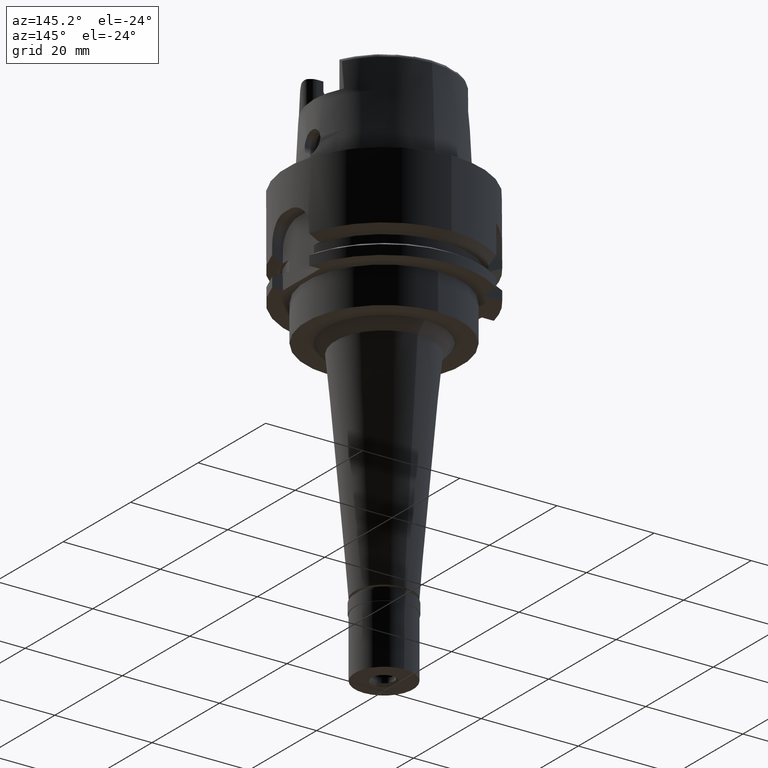
[diagram: clean part render]
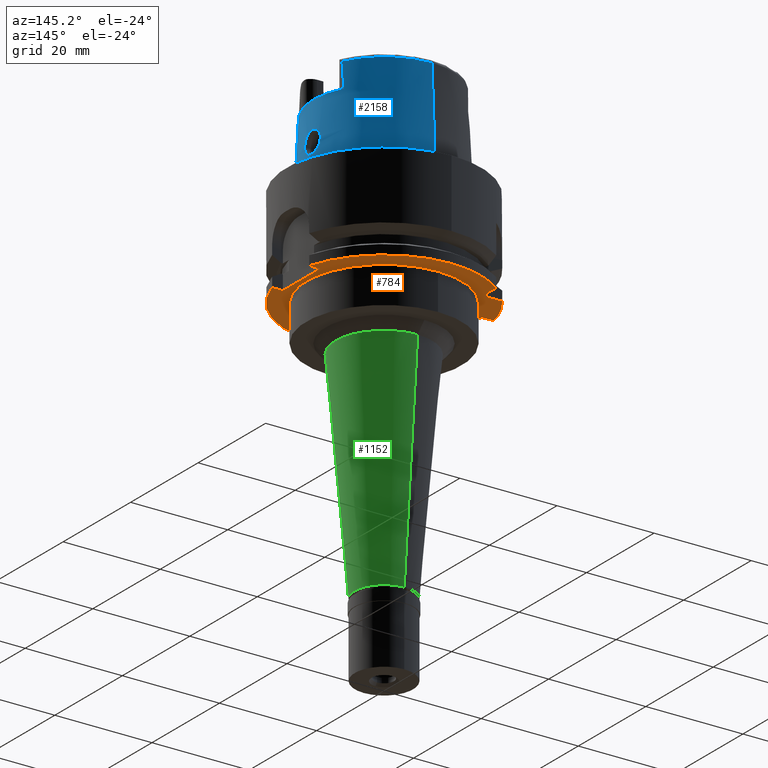
[diagram: same view with three faces highlighted in distinct colors, each labeled with its STEP entity id]
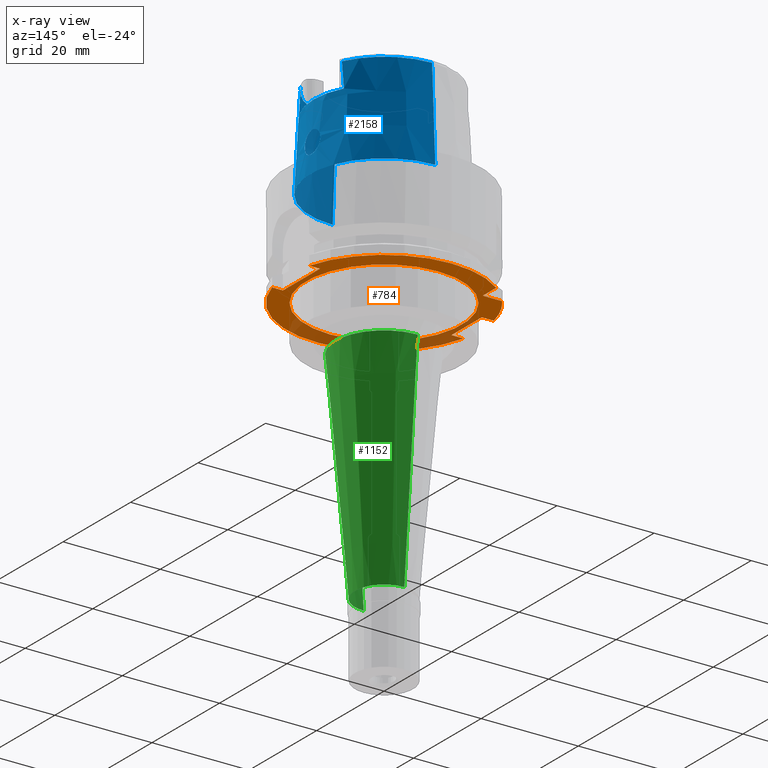
[diagram: x-ray of the same camera — body ghosted, the three highlighted faces saturated]
A machine part, auxiliary view with three faces highlighted in distinct colors.
The next image is the same camera in x-ray (body ghosted, the three faces saturated) — at least one of them is partly hidden behind the body in this view.
Their STEP definitions:

[orange] entity #784 — the highlighted planar face has unit normal (0, 0, -1).
#26 = DIRECTION ( 'NONE',  ( 0.0000000000000000000, 0.0000000000000000000, 1.000000000000000000 ) ) ;
#117 = VERTEX_POINT ( 'NONE', #4235 ) ;
#145 = LINE ( 'NONE', #1831, #1615 ) ;
#150 = AXIS2_PLACEMENT_3D ( 'NONE', #1369, #2990, #2591 ) ;
#161 = LINE ( 'NONE', #1791, #5143 ) ;
#200 = DIRECTION ( 'NONE',  ( 0.0000000000000000000, 0.0000000000000000000, -1.000000000000000000 ) ) ;
#322 = CARTESIAN_POINT ( 'NONE',  ( 0.0000000000000000000, 1.534482439332000152E-14, -20.00000000000000000 ) ) ;
#323 = AXIS2_PLACEMENT_3D ( 'NONE', #1442, #5021, #3387 ) ;
#327 = VECTOR ( 'NONE', #3110, 1000.000000000000000 ) ;
#397 = VERTEX_POINT ( 'NONE', #4771 ) ;
#472 = LINE ( 'NONE', #2434, #5206 ) ;
#557 = CARTESIAN_POINT ( 'NONE',  ( -12.00000000000000000, 12.00000000000000000, -20.00000000000000000 ) ) ;
#560 = EDGE_CURVE ( 'NONE', #1611, #4029, #3924, .T. ) ;
#628 = ORIENTED_EDGE ( 'NONE', *, *, #2355, .F. ) ;
#649 = FACE_BOUND ( 'NONE', #2881, .T. ) ;
#652 = ORIENTED_EDGE ( 'NONE', *, *, #560, .F. ) ;
#671 = VERTEX_POINT ( 'NONE', #3371 ) ;
#723 = VERTEX_POINT ( 'NONE', #2540 ) ;
#784 = ADVANCED_FACE ( 'NONE', ( #4695, #649 ), #3039, .T. ) ;
#877 = VERTEX_POINT ( 'NONE', #4467 ) ;
#900 = DIRECTION ( 'NONE',  ( -1.000000000000000000, -1.449839272533000158E-13, 0.0000000000000000000 ) ) ;
#1040 = AXIS2_PLACEMENT_3D ( 'NONE', #322, #1129, #4846 ) ;
#1047 = DIRECTION ( 'NONE',  ( -1.000000000000000000, 0.0000000000000000000, 0.0000000000000000000 ) ) ;
#1102 = VECTOR ( 'NONE', #1329, 1000.000000000000000 ) ;
#1112 = EDGE_CURVE ( 'NONE', #117, #1611, #1686, .T. ) ;
#1129 = DIRECTION ( 'NONE',  ( 0.0000000000000000000, 0.0000000000000000000, 1.000000000000000000 ) ) ;
#1269 = VERTEX_POINT ( 'NONE', #2162 ) ;
#1280 = DIRECTION ( 'NONE',  ( 0.0000000000000000000, -1.000000000000000000, 0.0000000000000000000 ) ) ;
#1285 = CARTESIAN_POINT ( 'NONE',  ( -17.00000000000000000, -4.500000000000000000, -20.00000000000000000 ) ) ;
#1329 = DIRECTION ( 'NONE',  ( 0.0000000000000000000, 1.000000000000000000, 0.0000000000000000000 ) ) ;
#1369 = CARTESIAN_POINT ( 'NONE',  ( 0.0000000000000000000, 0.0000000000000000000, -20.00000000000000000 ) ) ;
#1373 = ORIENTED_EDGE ( 'NONE', *, *, #2349, .F. ) ;
#1404 = VERTEX_POINT ( 'NONE', #2779 ) ;
#1440 = VERTEX_POINT ( 'NONE', #1593 ) ;
#1442 = CARTESIAN_POINT ( 'NONE',  ( 0.0000000000000000000, 1.534482439332000152E-14, -20.00000000000000000 ) ) ;
#1444 = CARTESIAN_POINT ( 'NONE',  ( -12.00000000000000000, 12.00000000000000000, -20.00000000000000000 ) ) ;
#1593 = CARTESIAN_POINT ( 'NONE',  ( -19.48717526991000071, 4.500000000000000000, -20.00000000000000000 ) ) ;
#1611 = VERTEX_POINT ( 'NONE', #3830 ) ;
#1615 = VECTOR ( 'NONE', #4237, 1000.000000000000000 ) ;
#1669 = DIRECTION ( 'NONE',  ( 0.0000000000000000000, 1.000000000000000000, 0.0000000000000000000 ) ) ;
#1686 = LINE ( 'NONE', #1285, #3733 ) ;
#1703 = AXIS2_PLACEMENT_3D ( 'NONE', #4938, #26, #1669 ) ;
#1766 = EDGE_CURVE ( 'NONE', #877, #1440, #472, .T. ) ;
#1791 = CARTESIAN_POINT ( 'NONE',  ( -17.00000000000000000, 4.500000000000000000, -20.00000000000000000 ) ) ;
#1831 = CARTESIAN_POINT ( 'NONE',  ( 19.22888452303000051, -5.500000000000000000, -20.00000000000000000 ) ) ;
#1873 = VECTOR ( 'NONE', #1047, 1000.000000000000000 ) ;
#1916 = VERTEX_POINT ( 'NONE', #2465 ) ;
#1940 = EDGE_CURVE ( 'NONE', #4352, #1404, #4698, .T. ) ;
#1949 = CIRCLE ( 'NONE', #1703, 20.00000000000000000 ) ;
#2031 = EDGE_CURVE ( 'NONE', #3029, #1916, #3515, .T. ) ;
#2083 = ORIENTED_EDGE ( 'NONE', *, *, #3129, .F. ) ;
#2150 = VECTOR ( 'NONE', #1280, 1000.000000000000000 ) ;
#2162 = CARTESIAN_POINT ( 'NONE',  ( -12.00000000000000000, 16.00000000000000000, -20.00000000000000000 ) ) ;
#2166 = EDGE_LOOP ( 'NONE', ( #4929, #2699, #4434, #1373, #652, #3290, #3007, #4114, #2279, #2083, #5200 ) ) ;
#2279 = ORIENTED_EDGE ( 'NONE', *, *, #2641, .F. ) ;
#2349 = EDGE_CURVE ( 'NONE', #4029, #671, #145, .T. ) ;
#2355 = EDGE_CURVE ( 'NONE', #1404, #4352, #5214, .T. ) ;
#2408 = EDGE_CURVE ( 'NONE', #397, #1269, #3002, .T. ) ;
#2434 = CARTESIAN_POINT ( 'NONE',  ( -17.00000000000000000, 4.500000000000000000, -20.00000000000000000 ) ) ;
#2465 = CARTESIAN_POINT ( 'NONE',  ( 17.00000000000000000, 5.500000000000000000, -20.00000000000000000 ) ) ;
#2466 = CARTESIAN_POINT ( 'NONE',  ( 19.22888452303000051, -5.500000000000000000, -20.00000000000000000 ) ) ;
#2483 = EDGE_CURVE ( 'NONE', #3029, #1269, #1949, .T. ) ;
#2485 = DIRECTION ( 'NONE',  ( -1.000000000000000000, 1.449839272533000158E-13, 0.0000000000000000000 ) ) ;
#2540 = CARTESIAN_POINT ( 'NONE',  ( -16.00000000000000000, 12.00000000000000000, -20.00000000000000000 ) ) ;
#2591 = DIRECTION ( 'NONE',  ( 0.0000000000000000000, -1.000000000000000000, 0.0000000000000000000 ) ) ;
#2627 = CARTESIAN_POINT ( 'NONE',  ( 0.0000000000000000000, 1.534482439332000152E-14, -20.00000000000000000 ) ) ;
#2641 = EDGE_CURVE ( 'NONE', #723, #1440, #5053, .T. ) ;
#2699 = ORIENTED_EDGE ( 'NONE', *, *, #2031, .T. ) ;
#2710 = AXIS2_PLACEMENT_3D ( 'NONE', #2627, #200, #4213 ) ;
#2779 = CARTESIAN_POINT ( 'NONE',  ( 0.0000000000000000000, 16.00000000000000000, -20.00000000000000000 ) ) ;
#2814 = EDGE_CURVE ( 'NONE', #877, #117, #161, .T. ) ;
#2881 = EDGE_LOOP ( 'NONE', ( #628, #4332 ) ) ;
#2952 = CARTESIAN_POINT ( 'NONE',  ( 17.00000000000000000, 5.500000000000000000, -20.00000000000000000 ) ) ;
#2990 = DIRECTION ( 'NONE',  ( 0.0000000000000000000, 0.0000000000000000000, -1.000000000000000000 ) ) ;
#3002 = LINE ( 'NONE', #557, #1102 ) ;
#3007 = ORIENTED_EDGE ( 'NONE', *, *, #2814, .F. ) ;
#3029 = VERTEX_POINT ( 'NONE', #3416 ) ;
#3039 = PLANE ( 'NONE',  #150 ) ;
#3040 = DIRECTION ( 'NONE',  ( 0.0000000000000000000, 0.0000000000000000000, 1.000000000000000000 ) ) ;
#3110 = DIRECTION ( 'NONE',  ( -1.000000000000000000, 2.231519443439000031E-14, 0.0000000000000000000 ) ) ;
#3129 = EDGE_CURVE ( 'NONE', #397, #723, #3468, .T. ) ;
#3290 = ORIENTED_EDGE ( 'NONE', *, *, #1112, .F. ) ;
#3371 = CARTESIAN_POINT ( 'NONE',  ( 17.00000000000000000, -5.500000000000000000, -20.00000000000000000 ) ) ;
#3387 = DIRECTION ( 'NONE',  ( 0.0000000000000000000, -1.000000000000000000, 0.0000000000000000000 ) ) ;
#3416 = CARTESIAN_POINT ( 'NONE',  ( 19.22888452303000051, 5.500000000000000000, -20.00000000000000000 ) ) ;
#3451 = CARTESIAN_POINT ( 'NONE',  ( 0.0000000000000000000, 1.534482439332000152E-14, -20.00000000000000000 ) ) ;
#3468 = LINE ( 'NONE', #1444, #1873 ) ;
#3515 = LINE ( 'NONE', #4835, #327 ) ;
#3733 = VECTOR ( 'NONE', #2485, 1000.000000000000000 ) ;
#3830 = CARTESIAN_POINT ( 'NONE',  ( -19.48717526991000071, -4.500000000000000000, -20.00000000000000000 ) ) ;
#3924 = CIRCLE ( 'NONE', #1040, 20.00000000000000000 ) ;
#4007 = CARTESIAN_POINT ( 'NONE',  ( 0.0000000000000000000, -16.00000000000000000, -20.00000000000000000 ) ) ;
#4029 = VERTEX_POINT ( 'NONE', #2466 ) ;
#4114 = ORIENTED_EDGE ( 'NONE', *, *, #1766, .T. ) ;
#4161 = LINE ( 'NONE', #2952, #2150 ) ;
#4213 = DIRECTION ( 'NONE',  ( 0.0000000000000000000, 1.000000000000000000, 0.0000000000000000000 ) ) ;
#4235 = CARTESIAN_POINT ( 'NONE',  ( -17.00000000000000000, -4.500000000000000000, -20.00000000000000000 ) ) ;
#4237 = DIRECTION ( 'NONE',  ( -1.000000000000000000, -2.470610812378999996E-14, 0.0000000000000000000 ) ) ;
#4310 = DIRECTION ( 'NONE',  ( 0.0000000000000000000, -1.000000000000000000, 0.0000000000000000000 ) ) ;
#4332 = ORIENTED_EDGE ( 'NONE', *, *, #1940, .F. ) ;
#4352 = VERTEX_POINT ( 'NONE', #4007 ) ;
#4434 = ORIENTED_EDGE ( 'NONE', *, *, #4683, .T. ) ;
#4467 = CARTESIAN_POINT ( 'NONE',  ( -17.00000000000000000, 4.500000000000000000, -20.00000000000000000 ) ) ;
#4683 = EDGE_CURVE ( 'NONE', #1916, #671, #4161, .T. ) ;
#4695 = FACE_OUTER_BOUND ( 'NONE', #2166, .T. ) ;
#4698 = CIRCLE ( 'NONE', #323, 16.00000000000000000 ) ;
#4771 = CARTESIAN_POINT ( 'NONE',  ( -12.00000000000000000, 12.00000000000000000, -20.00000000000000000 ) ) ;
#4782 = AXIS2_PLACEMENT_3D ( 'NONE', #3451, #3040, #5050 ) ;
#4835 = CARTESIAN_POINT ( 'NONE',  ( 19.22888452303000051, 5.500000000000000000, -20.00000000000000000 ) ) ;
#4846 = DIRECTION ( 'NONE',  ( 0.0000000000000000000, -1.000000000000000000, 0.0000000000000000000 ) ) ;
#4929 = ORIENTED_EDGE ( 'NONE', *, *, #2483, .F. ) ;
#4938 = CARTESIAN_POINT ( 'NONE',  ( 0.0000000000000000000, 1.534482439332000152E-14, -20.00000000000000000 ) ) ;
#5021 = DIRECTION ( 'NONE',  ( 0.0000000000000000000, 0.0000000000000000000, -1.000000000000000000 ) ) ;
#5050 = DIRECTION ( 'NONE',  ( -0.8000000000000000444, 0.5999999999999999778, 0.0000000000000000000 ) ) ;
#5053 = CIRCLE ( 'NONE', #4782, 20.00000000000000000 ) ;
#5143 = VECTOR ( 'NONE', #4310, 1000.000000000000000 ) ;
#5200 = ORIENTED_EDGE ( 'NONE', *, *, #2408, .T. ) ;
#5206 = VECTOR ( 'NONE', #900, 1000.000000000000000 ) ;
#5214 = CIRCLE ( 'NONE', #2710, 16.00000000000000000 ) ;

[blue] entity #2158 — the highlighted conical surface has half-angle 2.862 deg.
#11 = DIRECTION ( 'NONE',  ( 0.0000000000000000000, -1.000000000000000000, 0.0000000000000000000 ) ) ;
#23 = CARTESIAN_POINT ( 'NONE',  ( 14.88821001435302804, -1.654245681067648022, 4.402013557400260346 ) ) ;
#50 = CARTESIAN_POINT ( 'NONE',  ( 14.79810665353090293, -2.102674614818958343, 5.065755760936393237 ) ) ;
#77 = CARTESIAN_POINT ( 'NONE',  ( 14.97631679569881769, -0.9302403002532146914, 3.896398779043610983 ) ) ;
#81 = VECTOR ( 'NONE', #2991, 1000.000000000000227 ) ;
#107 = CARTESIAN_POINT ( 'NONE',  ( 14.83223049921039305, -1.955432229122414656, 4.788775612871565279 ) ) ;
#124 = CARTESIAN_POINT ( 'NONE',  ( 14.90627237532232030, 1.538492220976826141, 4.290173904353743239 ) ) ;
#173 = CARTESIAN_POINT ( 'NONE',  ( 14.77588826478016237, 2.186440970395673755, 5.267478523036968063 ) ) ;
#196 = CARTESIAN_POINT ( 'NONE',  ( 0.0000000000000000000, 1.459778984583999657E-14, 19.23995141520000018 ) ) ;
#202 = DIRECTION ( 'NONE',  ( 0.0000000000000000000, 0.0000000000000000000, 1.000000000000000000 ) ) ;
#252 = CARTESIAN_POINT ( 'NONE',  ( 14.72899035727410855, 1.629186609744705194, 7.623499612144176929 ) ) ;
#294 = CARTESIAN_POINT ( 'NONE',  ( 12.88000426023315015, 6.264427326735636292, 17.56902551621967845 ) ) ;
#304 = CARTESIAN_POINT ( 'NONE',  ( 14.74500096446484676, 1.354382634990033862, 7.859010050406248560 ) ) ;
#319 = CARTESIAN_POINT ( 'NONE',  ( 14.76821936306314242, -0.8622089887107629025, 8.132280768175327523 ) ) ;
#320 = VERTEX_POINT ( 'NONE', #951 ) ;
#329 = CARTESIAN_POINT ( 'NONE',  ( 14.70317989464932573, 2.128146396118670403, 6.872382697154782782 ) ) ;
#330 = AXIS2_PLACEMENT_3D ( 'NONE', #2924, #2442, #11 ) ;
#349 = CARTESIAN_POINT ( 'NONE',  ( 14.75798546585661875, -1.101467049407270915, 8.019453734374145881 ) ) ;
#401 = CARTESIAN_POINT ( 'NONE',  ( 14.70935466475967246, -2.282300107805147693, 6.294179699217094637 ) ) ;
#431 = CARTESIAN_POINT ( 'NONE',  ( 14.74236896269456132, -1.402790321579171051, 7.824246805973827712 ) ) ;
#462 = CARTESIAN_POINT ( 'NONE',  ( 14.72949340258022488, -1.621127396483668770, 7.631581464317473973 ) ) ;
#479 = DIRECTION ( 'NONE',  ( 0.0000000000000000000, 0.04993926899656212642, -0.9987522562738413434 ) ) ;
#487 = CARTESIAN_POINT ( 'NONE',  ( 14.96739810545463101, -1.030599217013784319, 3.943520043467635627 ) ) ;
#492 = CARTESIAN_POINT ( 'NONE',  ( 12.87999235482999794, -6.068467380775000031, 19.23976291071000233 ) ) ;
#514 = CARTESIAN_POINT ( 'NONE',  ( 14.73069348759462116, -1.601750673167721795, 7.650601041476320141 ) ) ;
#558 = CARTESIAN_POINT ( 'NONE',  ( 14.98380693823876797, 0.8363119203051441186, 3.857413666469737379 ) ) ;
#559 = CARTESIAN_POINT ( 'NONE',  ( 0.0000000000000000000, 1.342457523729000028E-14, 0.0000000000000000000 ) ) ;
#583 = CARTESIAN_POINT ( 'NONE',  ( 14.89505823822352504, 1.611984248808573605, 4.359391511570482436 ) ) ;
#636 = CARTESIAN_POINT ( 'NONE',  ( 14.82516172525692788, 1.987895855573762471, 4.840676947957295084 ) ) ;
#659 = CARTESIAN_POINT ( 'NONE',  ( 14.76241512542379120, 1.004072161043771505, 8.069547163873370010 ) ) ;
#681 = CARTESIAN_POINT ( 'NONE',  ( 14.78499286951999991, -6.884507511411997731E-14, 8.300000000000000711 ) ) ;
#693 = CIRCLE ( 'NONE', #1043, 15.20000663301000010 ) ;
#694 = CARTESIAN_POINT ( 'NONE',  ( 15.01500049747999910, 0.0000000000000000000, 3.700000000000000178 ) ) ;
#713 = CARTESIAN_POINT ( 'NONE',  ( 14.71340608062630118, 1.895770020524908395, 7.304484774409699455 ) ) ;
#720 = CARTESIAN_POINT ( 'NONE',  ( 0.0000000000000000000, 14.23797715755999782, 19.23995141520000018 ) ) ;
#725 = CARTESIAN_POINT ( 'NONE',  ( 14.76763748318565206, -0.8773581868683637541, 8.126089788909482081 ) ) ;
#733 = CARTESIAN_POINT ( 'NONE',  ( 14.76714121855280126, 0.8900451976600106674, 8.120810014476887773 ) ) ;
#757 = CARTESIAN_POINT ( 'NONE',  ( 14.73066144003646727, 1.603109887202407213, 7.650970480744678781 ) ) ;
#775 = CARTESIAN_POINT ( 'NONE',  ( 14.75237196097236314, -1.215615432300217735, 7.952710625383312859 ) ) ;
#804 = VERTEX_POINT ( 'NONE', #3895 ) ;
#837 = CARTESIAN_POINT ( 'NONE',  ( 14.78455351529502515, -2.153011937056454883, 5.190524067497192640 ) ) ;
#862 = CARTESIAN_POINT ( 'NONE',  ( 14.72153730601653265, -1.748229405450754115, 7.504125723298665562 ) ) ;
#869 = EDGE_CURVE ( 'NONE', #804, #2797, #1433, .T. ) ;
#891 = CARTESIAN_POINT ( 'NONE',  ( 14.87086354996809767, -1.755949291187812511, 4.514041322312498217 ) ) ;
#915 = CARTESIAN_POINT ( 'NONE',  ( 14.70379873878731480, -2.103473923934370049, 6.930530933651575687 ) ) ;
#916 = VERTEX_POINT ( 'NONE', #4387 ) ;
#919 = EDGE_CURVE ( 'NONE', #916, #2084, #3427, .T. ) ;
#939 = CARTESIAN_POINT ( 'NONE',  ( 14.70730645150911720, -2.271637389257438855, 6.367784693223106807 ) ) ;
#951 = CARTESIAN_POINT ( 'NONE',  ( 0.0000000000000000000, -15.20000663301000010, 1.136868377215999875E-13 ) ) ;
#960 = CARTESIAN_POINT ( 'NONE',  ( 14.89650975658425480, 1.602735441835961394, 4.350344716668702816 ) ) ;
#984 = CARTESIAN_POINT ( 'NONE',  ( 14.93882520185985285, 1.296088672663428421, 4.098476733282550022 ) ) ;
#1005 = DIRECTION ( 'NONE',  ( 0.0000000000000000000, 1.000000000000000000, 0.0000000000000000000 ) ) ;
#1043 = AXIS2_PLACEMENT_3D ( 'NONE', #559, #202, #2254 ) ;
#1074 = ORIENTED_EDGE ( 'NONE', *, *, #3708, .T. ) ;
#1082 = CARTESIAN_POINT ( 'NONE',  ( 14.72875565082853200, 1.633092111730418239, 7.619571570464419352 ) ) ;
#1124 = CARTESIAN_POINT ( 'NONE',  ( 14.76875327910774516, -0.8481424277522214838, 8.137950662867330820 ) ) ;
#1133 = CARTESIAN_POINT ( 'NONE',  ( 14.70255776435525519, 2.173680557046427264, 6.753459211667974138 ) ) ;
#1149 = CARTESIAN_POINT ( 'NONE',  ( 14.77405826892677965, -0.6932222171458561899, 8.193393186731615430 ) ) ;
#1159 = CARTESIAN_POINT ( 'NONE',  ( 14.72899569025701716, 1.629097888004926498, 7.623588644519861290 ) ) ;
#1175 = CARTESIAN_POINT ( 'NONE',  ( 14.75372169231070529, -1.188830184850906635, 7.969036074626233201 ) ) ;
#1238 = CARTESIAN_POINT ( 'NONE',  ( 14.71466562909624898, -2.295559344048790695, 6.147463848055757296 ) ) ;
#1261 = CARTESIAN_POINT ( 'NONE',  ( 14.79084131354513687, -2.129932834720285495, 5.131985342801120176 ) ) ;
#1286 = CARTESIAN_POINT ( 'NONE',  ( 14.95159780602250166, -1.187863542090068725, 4.029032633278230691 ) ) ;
#1315 = CARTESIAN_POINT ( 'NONE',  ( 15.00354929571343199, -0.5879302391956210405, 3.754525463234213323 ) ) ;
#1339 = CARTESIAN_POINT ( 'NONE',  ( 14.73757193449818459, -2.287928162841956770, 5.720952481566817127 ) ) ;
#1385 = CARTESIAN_POINT ( 'NONE',  ( 14.79662771912058084, 2.107952846540393832, 5.079723670822791526 ) ) ;
#1411 = CARTESIAN_POINT ( 'NONE',  ( 14.73841581497288900, 2.283619560550004923, 5.716585043810534117 ) ) ;
#1425 = LINE ( 'NONE', #2592, #81 ) ;
#1433 = CIRCLE ( 'NONE', #2023, 14.23797715756000315 ) ;
#1461 = CARTESIAN_POINT ( 'NONE',  ( 14.72578502869058070, 1.682666218039841732, 7.568268079441345719 ) ) ;
#1486 = CARTESIAN_POINT ( 'NONE',  ( 14.70278271980190077, 2.150286612138490039, 6.816650972097614947 ) ) ;
#1505 = CARTESIAN_POINT ( 'NONE',  ( 14.70295563036023445, 2.139722423472351309, 6.843612046889754552 ) ) ;
#1521 = CARTESIAN_POINT ( 'NONE',  ( 14.77916108253695171, -0.5059821365874942467, 8.244918242201794811 ) ) ;
#1558 = CARTESIAN_POINT ( 'NONE',  ( 14.76724015720223981, 0.8875285611425589583, 8.121866846991641964 ) ) ;
#1565 = CARTESIAN_POINT ( 'NONE',  ( 12.88000000001000167, 6.659963896840999986, 14.00000000000000000 ) ) ;
#1575 = CARTESIAN_POINT ( 'NONE',  ( 14.77733864910474360, -0.5807203118208587034, 8.226855804765943248 ) ) ;
#1603 = CARTESIAN_POINT ( 'NONE',  ( 14.74945644800024169, -1.271571545930739511, 7.916558066090167323 ) ) ;
#1628 = ORIENTED_EDGE ( 'NONE', *, *, #2693, .T. ) ;
#1633 = CARTESIAN_POINT ( 'NONE',  ( 14.70919314695223434, -1.970699085230362524, 7.188281518316790297 ) ) ;
#1659 = EDGE_CURVE ( 'NONE', #3195, #1765, #1941, .T. ) ;
#1665 = CARTESIAN_POINT ( 'NONE',  ( 14.70278119553802654, -2.228560811431969935, 6.588153674744921418 ) ) ;
#1687 = CARTESIAN_POINT ( 'NONE',  ( 14.91234266903881789, -1.506178942139080323, 4.253282322896730250 ) ) ;
#1695 = EDGE_LOOP ( 'NONE', ( #4957, #4119, #1628, #1074, #3663, #3178, #2424, #1980 ) ) ;
#1704 = FACE_BOUND ( 'NONE', #4610, .T. ) ;
#1713 = CARTESIAN_POINT ( 'NONE',  ( 14.97820245187326726, -0.9073878355412454688, 3.886539455235769047 ) ) ;
#1722 = CARTESIAN_POINT ( 'NONE',  ( 12.87998480911229038, -6.264498786763086358, 17.56875193849298000 ) ) ;
#1741 = CARTESIAN_POINT ( 'NONE',  ( 14.74570439023823631, -1.342135435275005673, 7.869323291675653032 ) ) ;
#1765 = VERTEX_POINT ( 'NONE', #2121 ) ;
#1777 = CARTESIAN_POINT ( 'NONE',  ( 14.90268249524751099, 1.562660561802649450, 4.312119420941602499 ) ) ;
#1806 = CARTESIAN_POINT ( 'NONE',  ( 14.76156451892420129, 2.230823590980275384, 5.420038455968615665 ) ) ;
#1832 = CARTESIAN_POINT ( 'NONE',  ( 14.98158121278664012, 0.8653313639738411389, 3.868977115725503957 ) ) ;
#1879 = CARTESIAN_POINT ( 'NONE',  ( 14.72887289683894174, 1.631140895574249683, 7.621536708199338150 ) ) ;
#1902 = CARTESIAN_POINT ( 'NONE',  ( 14.71595625860738643, 1.850346110335548522, 7.368546838383246644 ) ) ;
#1913 = CARTESIAN_POINT ( 'NONE',  ( 0.0000000000000000000, 1.459778984583999657E-14, 19.23995141520000018 ) ) ;
#1925 = CARTESIAN_POINT ( 'NONE',  ( 14.72322035710171306, 2.300009956714447412, 5.964199149878180783 ) ) ;
#1933 = CARTESIAN_POINT ( 'NONE',  ( 0.0000000000000000000, 1.342457523729000028E-14, 14.00000000000000000 ) ) ;
#1941 = B_SPLINE_CURVE_WITH_KNOTS ( 'NONE', 3,
 ( #3484, #4186, #3459, #3405, #5112, #5138, #2949, #2228, #558, #4594, #1832, #3051, #2153, #984, #4238, #3780, #4708, #124, #1777, #2972, #960, #583, #4681, #2655, #2580, #3003, #4296, #636, #4214, #2177, #5063, #1385, #2602, #173, #1806, #5090, #1411, #3025, #4829, #4804, #1925, #3508, #5166, #2746, #4372, #3155, #1133, #1486, #1505, #3180, #329, #3613, #3103, #713, #1902, #2721, #4399, #1461, #3531, #2302, #4757, #1082, #1879, #252, #5236, #1159, #757, #3124, #5187, #2694, #4318, #304, #4735, #2771, #3585, #1953, #4778, #4421, #3555, #4340, #659, #3080, #2274, #3904, #2330, #733, #1558, #4011, #2376, #681 ),
 .UNSPECIFIED., .F., .F.,
 ( 4, 2, 2, 1, 1, 2, 2, 2, 2, 2, 1, 2, 2, 2, 2, 2, 1, 2, 2, 2, 2, 2, 2, 2, 2, 1, 1, 2, 2, 2, 2, 1, 1, 1, 1, 1, 2, 3, 2, 2, 2, 1, 1, 2, 2, 2, 2, 1, 1, 2, 2, 4 ),
 ( 0.0000000000000000000, 0.05000000000000005135, 0.07500000000000005274, 0.08750000000000004996, 0.09375000000000006939, 0.09687500000000007216, 0.1000000000000000888, 0.1500000000000005496, 0.1750000000000007938, 0.1875000000000010270, 0.1937500000000011435, 0.1968750000000011324, 0.2000000000000011491, 0.2250000000000017542, 0.2500000000000023315, 0.2750000000000029643, 0.2875000000000031419, 0.2937500000000033973, 0.3000000000000037081, 0.3500000000000059730, 0.3750000000000071054, 0.3875000000000075051, 0.4000000000000079603, 0.4500000000000102252, 0.4750000000000115241, 0.4875000000000121458, 0.4937500000000124012, 0.4968750000000126121, 0.5000000000000127676, 0.5500000000000165867, 0.5750000000000184963, 0.5875000000000194511, 0.5937500000000197620, 0.5968750000000200284, 0.5984375000000202727, 0.5992187500000203393, 0.5996093750000203171, 0.6000000000000202949, 0.6500000000000203393, 0.6750000000000203615, 0.6875000000000202061, 0.6937500000000198508, 0.6968750000000194511, 0.6984375000000193623, 0.7000000000000192735, 0.7500000000000112133, 0.7750000000000069056, 0.7875000000000045297, 0.7937500000000036193, 0.7968750000000034417, 0.8000000000000032641, 1.000000000000000000 ),
 .UNSPECIFIED. ) ;
#1953 = CARTESIAN_POINT ( 'NONE',  ( 14.74853409973798612, 1.288931031631716628, 7.904908975038819285 ) ) ;
#1974 = CARTESIAN_POINT ( 'NONE',  ( 14.77228139633039028, -0.7495699563065219007, 8.175070586197815459 ) ) ;
#1980 = ORIENTED_EDGE ( 'NONE', *, *, #3219, .T. ) ;
#2008 = ORIENTED_EDGE ( 'NONE', *, *, #2945, .F. ) ;
#2023 = AXIS2_PLACEMENT_3D ( 'NONE', #1913, #3628, #3546 ) ;
#2026 = CARTESIAN_POINT ( 'NONE',  ( 14.70541209297422114, -2.056178390762702701, 7.031201060473480702 ) ) ;
#2058 = CARTESIAN_POINT ( 'NONE',  ( 14.87735685451338696, -1.718926800521272558, 4.471014800068244810 ) ) ;
#2084 = VERTEX_POINT ( 'NONE', #1565 ) ;
#2088 = CARTESIAN_POINT ( 'NONE',  ( 14.77220140295300510, -2.195301184873002853, 5.312845609198205032 ) ) ;
#2111 = CARTESIAN_POINT ( 'NONE',  ( 14.85789849607575697, -1.827827004151400869, 4.601868080985916265 ) ) ;
#2121 = CARTESIAN_POINT ( 'NONE',  ( 14.78499286951999991, -6.884507511411997731E-14, 8.300000000000000711 ) ) ;
#2137 = CARTESIAN_POINT ( 'NONE',  ( 14.70454676715564446, -2.079141572814545924, 6.984477729739428042 ) ) ;
#2153 = CARTESIAN_POINT ( 'NONE',  ( 14.96058461610044787, 1.105938291970874232, 3.977761928098093147 ) ) ;
#2158 = ADVANCED_FACE ( 'NONE', ( #3702, #1704 ), #4262, .T. ) ;
#2177 = CARTESIAN_POINT ( 'NONE',  ( 14.80666388667648548, 2.067940916741775936, 4.991927881260773248 ) ) ;
#2228 = CARTESIAN_POINT ( 'NONE',  ( 14.98583048355642333, 0.8092533838074086328, 3.846917805136049751 ) ) ;
#2254 = DIRECTION ( 'NONE',  ( 0.0000000000000000000, -1.000000000000000000, 0.0000000000000000000 ) ) ;
#2265 = CARTESIAN_POINT ( 'NONE',  ( 0.0000000000000000000, -14.23797715755999782, 19.23995141520000018 ) ) ;
#2274 = CARTESIAN_POINT ( 'NONE',  ( 14.76536941270936332, 0.9342837954729805716, 8.101804209811906077 ) ) ;
#2302 = CARTESIAN_POINT ( 'NONE',  ( 14.72817248430645698, 1.642802419264636882, 7.609737103466158281 ) ) ;
#2330 = CARTESIAN_POINT ( 'NONE',  ( 14.76685436012630959, 0.8973171902422801827, 8.117743476315959938 ) ) ;
#2376 = CARTESIAN_POINT ( 'NONE',  ( 14.78499286951999814, 0.2785813559510961213, 8.300000000000004263 ) ) ;
#2400 = CARTESIAN_POINT ( 'NONE',  ( 14.75096339690525227, -1.242826186511074127, 7.935329717380876779 ) ) ;
#2424 = ORIENTED_EDGE ( 'NONE', *, *, #919, .T. ) ;
#2442 = DIRECTION ( 'NONE',  ( 0.0000000000000000000, 0.0000000000000000000, -1.000000000000000000 ) ) ;
#2452 = CARTESIAN_POINT ( 'NONE',  ( 14.83823846060491114, -1.926727980592615852, 4.743881358687393579 ) ) ;
#2486 = CARTESIAN_POINT ( 'NONE',  ( 14.70337028550372338, -2.119891799105110497, 6.892259917720456208 ) ) ;
#2511 = CARTESIAN_POINT ( 'NONE',  ( 14.77772077390270944, -2.177131790705428838, 5.256433042184986526 ) ) ;
#2513 = B_SPLINE_CURVE_WITH_KNOTS ( 'NONE', 3,
 ( #3063, #5101, #1722, #492 ),
 .UNSPECIFIED., .F., .F.,
 ( 4, 4 ),
 ( 0.0000000000000000000, 1.000000000000000000 ),
 .UNSPECIFIED. ) ;
#2538 = CARTESIAN_POINT ( 'NONE',  ( 14.73194453387004543, -1.581397157406860154, 7.670271292575605138 ) ) ;
#2564 = VECTOR ( 'NONE', #479, 1000.000000000000227 ) ;
#2580 = CARTESIAN_POINT ( 'NONE',  ( 14.85961751801453268, 1.820042557327718802, 4.591749789562994621 ) ) ;
#2592 = CARTESIAN_POINT ( 'NONE',  ( 0.0000000000000000000, -14.23797715755999782, 19.23995141520000018 ) ) ;
#2602 = CARTESIAN_POINT ( 'NONE',  ( 14.79475187274841197, 2.115203342875419779, 5.096485506119727837 ) ) ;
#2655 = CARTESIAN_POINT ( 'NONE',  ( 14.87690011844906124, 1.723564939533433149, 4.475189367530838069 ) ) ;
#2693 = EDGE_CURVE ( 'NONE', #2797, #320, #1425, .T. ) ;
#2694 = CARTESIAN_POINT ( 'NONE',  ( 14.74146912258905040, 1.418215996256903200, 7.810927699523335654 ) ) ;
#2721 = CARTESIAN_POINT ( 'NONE',  ( 14.72038869746222289, 1.773863879967596535, 7.464609924029935506 ) ) ;
#2738 = CARTESIAN_POINT ( 'NONE',  ( 14.78499286951999636, -0.1390341784427496230, 8.300000000000000711 ) ) ;
#2746 = CARTESIAN_POINT ( 'NONE',  ( 14.70427225159382445, 2.242704431812615695, 6.515678568523863845 ) ) ;
#2760 = CARTESIAN_POINT ( 'NONE',  ( 14.76259995482598697, -1.001239328995031874, 8.072006754550796970 ) ) ;
#2771 = CARTESIAN_POINT ( 'NONE',  ( 14.74751654805426604, 1.307950458727201726, 7.891933238191012556 ) ) ;
#2787 = CARTESIAN_POINT ( 'NONE',  ( 14.76525791473413562, -0.9385387104503964961, 8.100721495804101835 ) ) ;
#2797 = VERTEX_POINT ( 'NONE', #2265 ) ;
#2849 = CARTESIAN_POINT ( 'NONE',  ( 14.73486355486385513, -1.533063810958050555, 7.715286704296295817 ) ) ;
#2873 = CARTESIAN_POINT ( 'NONE',  ( 14.88495123728134928, -1.673916420340660016, 4.422460787494471468 ) ) ;
#2903 = CIRCLE ( 'NONE', #4539, 14.49998341749000730 ) ;
#2906 = CARTESIAN_POINT ( 'NONE',  ( 14.70744162280561085, -2.007274745616504319, 7.125090619752345589 ) ) ;
#2924 = CARTESIAN_POINT ( 'NONE',  ( 0.0000000000000000000, 1.342457523729000028E-14, 9.619975707600000092 ) ) ;
#2934 = CARTESIAN_POINT ( 'NONE',  ( 14.97170762751505002, -0.9839554819478038006, 3.920614905032627995 ) ) ;
#2945 = EDGE_CURVE ( 'NONE', #1765, #3195, #5055, .T. ) ;
#2949 = CARTESIAN_POINT ( 'NONE',  ( 14.99031987917924447, 0.7459016682297799905, 3.823713580440719628 ) ) ;
#2957 = CARTESIAN_POINT ( 'NONE',  ( 14.75515255790491054, -2.246231951736888721, 5.499937285969486389 ) ) ;
#2972 = CARTESIAN_POINT ( 'NONE',  ( 14.89899223594640176, 1.586722728875298971, 4.334937108692136221 ) ) ;
#2976 = CARTESIAN_POINT ( 'NONE',  ( 0.0000000000000000000, 15.20000663301000010, 0.0000000000000000000 ) ) ;
#2991 = DIRECTION ( 'NONE',  ( 0.0000000000000000000, -0.04993926899656212642, -0.9987522562738413434 ) ) ;
#3003 = CARTESIAN_POINT ( 'NONE',  ( 14.85071942679666357, 1.866337755878297644, 4.653799170371266669 ) ) ;
#3025 = CARTESIAN_POINT ( 'NONE',  ( 14.73133886408798432, 2.293597955874691063, 5.824731632953747074 ) ) ;
#3051 = CARTESIAN_POINT ( 'NONE',  ( 14.97223566093456704, 0.9839881258481582016, 3.917613273316965739 ) ) ;
#3063 = CARTESIAN_POINT ( 'NONE',  ( 12.88000000001000167, -6.659963896840999986, 14.00000000000000000 ) ) ;
#3080 = CARTESIAN_POINT ( 'NONE',  ( 14.76441079494379771, 0.9572560760022179593, 8.091400821692650069 ) ) ;
#3103 = CARTESIAN_POINT ( 'NONE',  ( 14.70696989044936842, 2.017200920679096399, 7.115077770903149634 ) ) ;
#3124 = CARTESIAN_POINT ( 'NONE',  ( 14.73565081296927737, 1.519584822068539509, 7.726927380703378034 ) ) ;
#3155 = CARTESIAN_POINT ( 'NONE',  ( 14.70267094972583344, 2.191582856694982873, 6.698870259281528128 ) ) ;
#3178 = ORIENTED_EDGE ( 'NONE', *, *, #4219, .T. ) ;
#3180 = CARTESIAN_POINT ( 'NONE',  ( 14.70308790430607182, 2.132559960464040394, 6.861557514153018289 ) ) ;
#3181 = CARTESIAN_POINT ( 'NONE',  ( 12.88000000001000167, -6.659963896840999986, 14.00000000000000000 ) ) ;
#3195 = VERTEX_POINT ( 'NONE', #694 ) ;
#3219 = EDGE_CURVE ( 'NONE', #2084, #3808, #2903, .T. ) ;
#3221 = CARTESIAN_POINT ( 'NONE',  ( 12.88000000001000167, 6.659963896840999986, 14.00000000000000000 ) ) ;
#3259 = CARTESIAN_POINT ( 'NONE',  ( 14.76161234709278069, -2.228429473507369973, 5.425355868370993484 ) ) ;
#3288 = CARTESIAN_POINT ( 'NONE',  ( 14.81768549512527322, -2.021421350654466043, 4.902148662854533434 ) ) ;
#3313 = CARTESIAN_POINT ( 'NONE',  ( 14.71779343153386854, -2.299087938451780389, 6.074383733427844767 ) ) ;
#3341 = CARTESIAN_POINT ( 'NONE',  ( 14.97943962229654069, -0.8921921932720194848, 3.880079895697053249 ) ) ;
#3369 = CARTESIAN_POINT ( 'NONE',  ( 14.72985944846032424, -1.615238484147476505, 7.637404548804277660 ) ) ;
#3391 = EDGE_CURVE ( 'NONE', #4584, #4802, #4381, .T. ) ;
#3405 = CARTESIAN_POINT ( 'NONE',  ( 15.00367748980080762, 0.5085406978788976629, 3.755685989404009550 ) ) ;
#3427 = B_SPLINE_CURVE_WITH_KNOTS ( 'NONE', 3,
 ( #4794, #294, #3946, #3221 ),
 .UNSPECIFIED., .F., .F.,
 ( 4, 4 ),
 ( 0.0000000000000000000, 1.000000000000000000 ),
 .UNSPECIFIED. ) ;
#3459 = CARTESIAN_POINT ( 'NONE',  ( 15.01216974556020567, 0.2889072941603010869, 3.713349905733840384 ) ) ;
#3484 = CARTESIAN_POINT ( 'NONE',  ( 15.01500049747999910, 0.0000000000000000000, 3.700000000000000178 ) ) ;
#3508 = CARTESIAN_POINT ( 'NONE',  ( 14.71400294759314775, 2.299959736168232460, 6.146373637263134349 ) ) ;
#3531 = CARTESIAN_POINT ( 'NONE',  ( 14.72736559753038499, 1.656254543037765981, 7.595942446787918634 ) ) ;
#3546 = DIRECTION ( 'NONE',  ( 0.9046212760392207120, -0.4262163147243098749, 0.0000000000000000000 ) ) ;
#3547 = CARTESIAN_POINT ( 'NONE',  ( 14.78499286951999991, -6.884507511411997731E-14, 8.300000000000000711 ) ) ;
#3555 = CARTESIAN_POINT ( 'NONE',  ( 14.75636128947436454, 1.136645161240327440, 8.000932754169836514 ) ) ;
#3585 = CARTESIAN_POINT ( 'NONE',  ( 14.74812513316742013, 1.296584634474396758, 7.899707791512035726 ) ) ;
#3594 = DIRECTION ( 'NONE',  ( 0.8882768779220027167, 0.4593083802296007434, 0.0000000000000000000 ) ) ;
#3613 = CARTESIAN_POINT ( 'NONE',  ( 14.70429822201991854, 2.078363038686445563, 6.992684442837682646 ) ) ;
#3620 = DIRECTION ( 'NONE',  ( 0.0000000000000000000, 0.0000000000000000000, -1.000000000000000000 ) ) ;
#3622 = CARTESIAN_POINT ( 'NONE',  ( 0.0000000000000000000, 14.23797715755999782, 19.23995141520000018 ) ) ;
#3628 = DIRECTION ( 'NONE',  ( 0.0000000000000000000, 0.0000000000000000000, -1.000000000000000000 ) ) ;
#3629 = CARTESIAN_POINT ( 'NONE',  ( 14.76786057148117770, -0.8715846338589584574, 8.128465607089990996 ) ) ;
#3656 = CARTESIAN_POINT ( 'NONE',  ( 14.83581918085198303, -1.938344880953168037, 4.761882931732960067 ) ) ;
#3663 = ORIENTED_EDGE ( 'NONE', *, *, #3391, .F. ) ;
#3686 = CARTESIAN_POINT ( 'NONE',  ( 14.71564323216915859, -1.847809500582888509, 7.377777723277513466 ) ) ;
#3702 = FACE_OUTER_BOUND ( 'NONE', #1695, .T. ) ;
#3708 = EDGE_CURVE ( 'NONE', #320, #4802, #693, .T. ) ;
#3714 = CARTESIAN_POINT ( 'NONE',  ( 14.89132166421976144, -1.635322711084116420, 4.382645602711058963 ) ) ;
#3739 = CARTESIAN_POINT ( 'NONE',  ( 14.71959513878676162, -2.299974993146528757, 6.035905489719094241 ) ) ;
#3765 = CARTESIAN_POINT ( 'NONE',  ( 14.82876253153221313, -1.971529614222928606, 4.815312702874252615 ) ) ;
#3780 = CARTESIAN_POINT ( 'NONE',  ( 14.91783712533307593, 1.457684375590612591, 4.220433918208201796 ) ) ;
#3808 = VERTEX_POINT ( 'NONE', #3181 ) ;
#3895 = CARTESIAN_POINT ( 'NONE',  ( 12.87999235482999794, -6.068467380775000031, 19.23976291071000233 ) ) ;
#3904 = CARTESIAN_POINT ( 'NONE',  ( 14.76641917036226559, 0.9082843032887525370, 8.113085671877600547 ) ) ;
#3946 = CARTESIAN_POINT ( 'NONE',  ( 12.88001670702532486, 6.461541540600770794, 15.82237502146217878 ) ) ;
#4011 = CARTESIAN_POINT ( 'NONE',  ( 14.77913630463166150, 0.5822866376079313122, 8.248750311514974953 ) ) ;
#4056 = CARTESIAN_POINT ( 'NONE',  ( 14.82198754812707087, -2.002468943660157485, 4.867847105469820690 ) ) ;
#4083 = CARTESIAN_POINT ( 'NONE',  ( 14.84928386707852965, -1.872853946673733283, 4.662785539075737340 ) ) ;
#4117 = CARTESIAN_POINT ( 'NONE',  ( 14.89038343053406876, -1.641048280055890762, 4.388463470290187907 ) ) ;
#4119 = ORIENTED_EDGE ( 'NONE', *, *, #869, .T. ) ;
#4142 = CARTESIAN_POINT ( 'NONE',  ( 14.95830065270131470, -1.124478990470388462, 3.992383196198577622 ) ) ;
#4151 = DIRECTION ( 'NONE',  ( 0.0000000000000000000, 0.0000000000000000000, -1.000000000000000000 ) ) ;
#4166 = CARTESIAN_POINT ( 'NONE',  ( 14.72824984443617957, -2.300097106479098485, 5.864574472761110435 ) ) ;
#4186 = CARTESIAN_POINT ( 'NONE',  ( 15.01500049748000798, 0.1428634201928227765, 3.700000000000001066 ) ) ;
#4214 = CARTESIAN_POINT ( 'NONE',  ( 14.81278920028970347, 2.041972094172615382, 4.940854148607693119 ) ) ;
#4219 = EDGE_CURVE ( 'NONE', #4584, #916, #4619, .T. ) ;
#4238 = CARTESIAN_POINT ( 'NONE',  ( 14.93085825594808647, 1.360629611852590459, 4.143798563579612626 ) ) ;
#4262 = CONICAL_SURFACE ( 'NONE', #330, 14.71899189528999941, 0.04996004983832824653 ) ;
#4296 = CARTESIAN_POINT ( 'NONE',  ( 14.83357260555613344, 1.948993907990715035, 4.776522971476369506 ) ) ;
#4318 = CARTESIAN_POINT ( 'NONE',  ( 14.74281959063277370, 1.394066992129808780, 7.829661165175155091 ) ) ;
#4340 = CARTESIAN_POINT ( 'NONE',  ( 14.76098010042530362, 1.036446695861198197, 8.053582667914438886 ) ) ;
#4372 = CARTESIAN_POINT ( 'NONE',  ( 14.70330532623345654, 2.224537380441829804, 6.589282335801165402 ) ) ;
#4381 = LINE ( 'NONE', #720, #2564 ) ;
#4387 = CARTESIAN_POINT ( 'NONE',  ( 12.88000642478999858, 6.068395837171999929, 19.23995141520000018 ) ) ;
#4399 = CARTESIAN_POINT ( 'NONE',  ( 14.72275670986043572, 1.733538010540191854, 7.512629189206916358 ) ) ;
#4421 = CARTESIAN_POINT ( 'NONE',  ( 14.75286376756645446, 1.207578106298278220, 7.959491169218225082 ) ) ;
#4494 = CARTESIAN_POINT ( 'NONE',  ( 14.73736542374621905, -1.490229507119669838, 7.752324253660079378 ) ) ;
#4515 = EDGE_CURVE ( 'NONE', #3808, #804, #2513, .T. ) ;
#4520 = CARTESIAN_POINT ( 'NONE',  ( 14.78756614916695078, -2.142037437992235560, 5.162277999825914065 ) ) ;
#4539 = AXIS2_PLACEMENT_3D ( 'NONE', #1933, #3620, #3594 ) ;
#4551 = CARTESIAN_POINT ( 'NONE',  ( 14.70192353659808759, -2.185015068575879127, 6.734492742540309607 ) ) ;
#4578 = CARTESIAN_POINT ( 'NONE',  ( 14.70353419486229996, -2.113391621608978532, 6.907548816536385416 ) ) ;
#4584 = VERTEX_POINT ( 'NONE', #3622 ) ;
#4594 = CARTESIAN_POINT ( 'NONE',  ( 14.98243579277761839, 0.8543286856485351466, 3.864533699270070066 ) ) ;
#4604 = CARTESIAN_POINT ( 'NONE',  ( 14.78959330866652877, -2.134578240042050545, 5.143449784031905558 ) ) ;
#4610 = EDGE_LOOP ( 'NONE', ( #5041, #2008 ) ) ;
#4619 = CIRCLE ( 'NONE', #4890, 14.23797715755999782 ) ;
#4664 = CARTESIAN_POINT ( 'NONE',  ( 15.01500049747999910, 0.0000000000000000000, 3.700000000000000178 ) ) ;
#4681 = CARTESIAN_POINT ( 'NONE',  ( 14.88547845153179949, 1.672448345868770003, 4.419291267787698985 ) ) ;
#4708 = CARTESIAN_POINT ( 'NONE',  ( 14.91331829650350649, 1.490072994449322730, 4.247419948576002469 ) ) ;
#4735 = CARTESIAN_POINT ( 'NONE',  ( 14.74613056932249933, 1.333675034726631070, 7.873995570820516043 ) ) ;
#4745 = CARTESIAN_POINT ( 'NONE',  ( 15.01500049748000087, -0.2871327510609709144, 3.699999999999998845 ) ) ;
#4757 = CARTESIAN_POINT ( 'NONE',  ( 14.72858007828354943, 1.636014502971814499, 7.616623004602086411 ) ) ;
#4778 = CARTESIAN_POINT ( 'NONE',  ( 14.74882556116015309, 1.283462059134971467, 7.908594459095328766 ) ) ;
#4794 = CARTESIAN_POINT ( 'NONE',  ( 12.88000642478999858, 6.068395837171999929, 19.23995141520000018 ) ) ;
#4802 = VERTEX_POINT ( 'NONE', #2976 ) ;
#4804 = CARTESIAN_POINT ( 'NONE',  ( 14.72502563372538020, 2.299240633545735601, 5.931124051291260635 ) ) ;
#4829 = CARTESIAN_POINT ( 'NONE',  ( 14.72913262456413719, 2.296034907092580735, 5.860446810603685996 ) ) ;
#4844 = CARTESIAN_POINT ( 'NONE',  ( 14.75634271134896736, -1.135899380107993295, 8.000353389938581472 ) ) ;
#4890 = AXIS2_PLACEMENT_3D ( 'NONE', #196, #4151, #1005 ) ;
#4907 = CARTESIAN_POINT ( 'NONE',  ( 14.71323667652580980, -2.292916343129948853, 6.184101908700850636 ) ) ;
#4935 = CARTESIAN_POINT ( 'NONE',  ( 14.80542314392475056, -2.073773341567678230, 5.002427211067550950 ) ) ;
#4957 = ORIENTED_EDGE ( 'NONE', *, *, #4515, .T. ) ;
#4964 = CARTESIAN_POINT ( 'NONE',  ( 14.92957563145616895, -1.378435473885461837, 4.152611501180695441 ) ) ;
#4995 = CARTESIAN_POINT ( 'NONE',  ( 14.97993119206988588, -0.8860916978660042798, 3.877516306722654793 ) ) ;
#5023 = CARTESIAN_POINT ( 'NONE',  ( 14.70330640099692943, -2.122551103619156443, 6.885928702436862281 ) ) ;
#5041 = ORIENTED_EDGE ( 'NONE', *, *, #1659, .F. ) ;
#5055 = B_SPLINE_CURVE_WITH_KNOTS ( 'NONE', 3,
 ( #3547, #2738, #5199, #1521, #1575, #1149, #1974, #5253, #1124, #319, #3629, #725, #2787, #2760, #349, #4844, #1175, #775, #2400, #5277, #1603, #1741, #431, #4494, #2849, #2538, #514, #3369, #462, #862, #3686, #1633, #2906, #2026, #2137, #915, #4578, #2486, #5023, #4551, #1665, #939, #401, #4907, #1238, #3313, #3739, #4166, #1339, #2957, #3259, #2088, #2511, #837, #4520, #4604, #1261, #50, #4935, #3288, #4056, #3765, #107, #3656, #2452, #5306, #4083, #2111, #891, #2058, #2873, #23, #4117, #3714, #1687, #4964, #1286, #4142, #487, #2934, #77, #1713, #3341, #4995, #1315, #4745, #4664 ),
 .UNSPECIFIED., .F., .F.,
 ( 4, 2, 2, 1, 1, 1, 2, 2, 2, 2, 1, 2, 2, 2, 1, 1, 2, 2, 2, 2, 1, 1, 2, 2, 2, 2, 2, 2, 2, 2, 1, 1, 2, 2, 2, 2, 1, 2, 2, 2, 1, 1, 2, 2, 2, 2, 1, 1, 2, 2, 4 ),
 ( 0.0000000000000000000, 0.06250000000000233147, 0.09375000000000358047, 0.1093750000000041078, 0.1171875000000044825, 0.1210937500000045380, 0.1230468750000045242, 0.1250000000000044964, 0.1562500000000030531, 0.1718750000000023037, 0.1796875000000019151, 0.1835937500000017764, 0.1875000000000016098, 0.2187500000000025535, 0.2343750000000031364, 0.2421875000000034139, 0.2460937500000034694, 0.2500000000000034972, 0.3125000000000036637, 0.3437500000000036082, 0.3593750000000035527, 0.3671875000000034417, 0.3710937500000035527, 0.3750000000000037192, 0.4375000000000046074, 0.4687500000000048295, 0.4843750000000051070, 0.5000000000000054401, 0.5625000000000069944, 0.5937500000000076605, 0.6093750000000081046, 0.6171875000000084377, 0.6210937500000087708, 0.6250000000000089928, 0.6562500000000094369, 0.6718750000000097700, 0.6796875000000097700, 0.6835937500000097700, 0.6875000000000096589, 0.7187500000000083267, 0.7343750000000076605, 0.7421875000000072164, 0.7460937500000071054, 0.7500000000000068834, 0.8125000000000053291, 0.8437500000000045519, 0.8593750000000043299, 0.8671875000000039968, 0.8710937500000039968, 0.8750000000000038858, 1.000000000000000000 ),
 .UNSPECIFIED. ) ;
#5063 = CARTESIAN_POINT ( 'NONE',  ( 14.80062999636886545, 2.092185891524642294, 5.044420636165229510 ) ) ;
#5090 = CARTESIAN_POINT ( 'NONE',  ( 14.74374475864733114, 2.273408937110870109, 5.643146912130815984 ) ) ;
#5101 = CARTESIAN_POINT ( 'NONE',  ( 12.87999628661342832, -6.461605125112712678, 15.82216440580182848 ) ) ;
#5112 = CARTESIAN_POINT ( 'NONE',  ( 15.00013904990104940, 0.5818363574394382898, 3.773509247253552967 ) ) ;
#5138 = CARTESIAN_POINT ( 'NONE',  ( 14.99376985808150131, 0.6912946720778589960, 3.806017244579456005 ) ) ;
#5166 = CARTESIAN_POINT ( 'NONE',  ( 14.70880505074075195, 2.286023167685327540, 6.294428760200162287 ) ) ;
#5187 = CARTESIAN_POINT ( 'NONE',  ( 14.73772906199082122, 1.484197857113484842, 7.757936204957124993 ) ) ;
#5199 = CARTESIAN_POINT ( 'NONE',  ( 14.78353492277423342, -0.2839899393559065510, 8.287368151655691406 ) ) ;
#5236 = CARTESIAN_POINT ( 'NONE',  ( 14.72899043931999863, 1.629185244794862264, 7.623500981873033489 ) ) ;
#5253 = CARTESIAN_POINT ( 'NONE',  ( 14.76996918391326830, -0.8153018232046477243, 8.150811815423638862 ) ) ;
#5277 = CARTESIAN_POINT ( 'NONE',  ( 14.75001128025410146, -1.261054710728103823, 7.923501770575128944 ) ) ;
#5306 = CARTESIAN_POINT ( 'NONE',  ( 14.83962474225403838, -1.920009974154728072, 4.733646517274875620 ) ) ;

[green] entity #1152 — the highlighted conical surface has half-angle 5 deg.
#131 = DIRECTION ( 'NONE',  ( 0.0000000000000000000, 1.000000000000000000, 0.0000000000000000000 ) ) ;
#141 = DIRECTION ( 'NONE',  ( 0.0000000000000000000, 0.0000000000000000000, 1.000000000000000000 ) ) ;
#191 = CARTESIAN_POINT ( 'NONE',  ( 0.0000000000000000000, 9.963236457722999262, -29.50000000000000000 ) ) ;
#223 = ORIENTED_EDGE ( 'NONE', *, *, #3134, .T. ) ;
#233 = DIRECTION ( 'NONE',  ( 0.0000000000000000000, 0.0000000000000000000, 1.000000000000000000 ) ) ;
#536 = LINE ( 'NONE', #562, #3082 ) ;
#562 = CARTESIAN_POINT ( 'NONE',  ( 0.0000000000000000000, -9.963236457722999262, -29.50000000000000000 ) ) ;
#646 = DIRECTION ( 'NONE',  ( 0.0000000000000000000, -1.000000000000000000, 0.0000000000000000000 ) ) ;
#864 = AXIS2_PLACEMENT_3D ( 'NONE', #2495, #141, #2122 ) ;
#1015 = AXIS2_PLACEMENT_3D ( 'NONE', #3090, #2981, #131 ) ;
#1152 = ADVANCED_FACE ( 'NONE', ( #1762 ), #4070, .T. ) ;
#1209 = CIRCLE ( 'NONE', #864, 9.963236457723999351 ) ;
#1618 = DIRECTION ( 'NONE',  ( 0.0000000000000000000, -0.08715574274763414342, -0.9961946980917475436 ) ) ;
#1762 = FACE_OUTER_BOUND ( 'NONE', #3138, .T. ) ;
#1929 = VERTEX_POINT ( 'NONE', #5119 ) ;
#2122 = DIRECTION ( 'NONE',  ( 0.0000000000000000000, -1.000000000000000000, 0.0000000000000000000 ) ) ;
#2495 = CARTESIAN_POINT ( 'NONE',  ( 0.0000000000000000000, 0.0000000000000000000, -29.50000000000000000 ) ) ;
#2715 = CIRCLE ( 'NONE', #4875, 6.000000000000000000 ) ;
#2829 = VERTEX_POINT ( 'NONE', #191 ) ;
#2981 = DIRECTION ( 'NONE',  ( 0.0000000000000000000, 0.0000000000000000000, 1.000000000000000000 ) ) ;
#3008 = ORIENTED_EDGE ( 'NONE', *, *, #5061, .F. ) ;
#3082 = VECTOR ( 'NONE', #4658, 1000.000000000000114 ) ;
#3090 = CARTESIAN_POINT ( 'NONE',  ( 0.0000000000000000000, 0.0000000000000000000, -52.14999999999999858 ) ) ;
#3134 = EDGE_CURVE ( 'NONE', #4653, #1929, #2715, .T. ) ;
#3138 = EDGE_LOOP ( 'NONE', ( #3386, #3390, #223, #3008 ) ) ;
#3260 = VECTOR ( 'NONE', #1618, 1000.000000000000114 ) ;
#3386 = ORIENTED_EDGE ( 'NONE', *, *, #4060, .F. ) ;
#3390 = ORIENTED_EDGE ( 'NONE', *, *, #4918, .T. ) ;
#3669 = LINE ( 'NONE', #4451, #3260 ) ;
#3873 = VERTEX_POINT ( 'NONE', #5139 ) ;
#4060 = EDGE_CURVE ( 'NONE', #3873, #2829, #1209, .T. ) ;
#4070 = CONICAL_SURFACE ( 'NONE', #1015, 7.981618228861999675, 0.08726646259969973729 ) ;
#4305 = CARTESIAN_POINT ( 'NONE',  ( 0.0000000000000000000, 0.0000000000000000000, -74.80000000000001137 ) ) ;
#4451 = CARTESIAN_POINT ( 'NONE',  ( 0.0000000000000000000, 9.963236457722999262, -29.50000000000000000 ) ) ;
#4653 = VERTEX_POINT ( 'NONE', #5300 ) ;
#4658 = DIRECTION ( 'NONE',  ( 0.0000000000000000000, 0.08715574274763414342, -0.9961946980917475436 ) ) ;
#4875 = AXIS2_PLACEMENT_3D ( 'NONE', #4305, #233, #646 ) ;
#4918 = EDGE_CURVE ( 'NONE', #3873, #4653, #536, .T. ) ;
#5061 = EDGE_CURVE ( 'NONE', #2829, #1929, #3669, .T. ) ;
#5119 = CARTESIAN_POINT ( 'NONE',  ( 0.0000000000000000000, 6.000000000000000000, -74.80000000000001137 ) ) ;
#5139 = CARTESIAN_POINT ( 'NONE',  ( 0.0000000000000000000, -9.963236457722999262, -29.50000000000000000 ) ) ;
#5300 = CARTESIAN_POINT ( 'NONE',  ( 0.0000000000000000000, -6.000000000000000000, -74.80000000000001137 ) ) ;